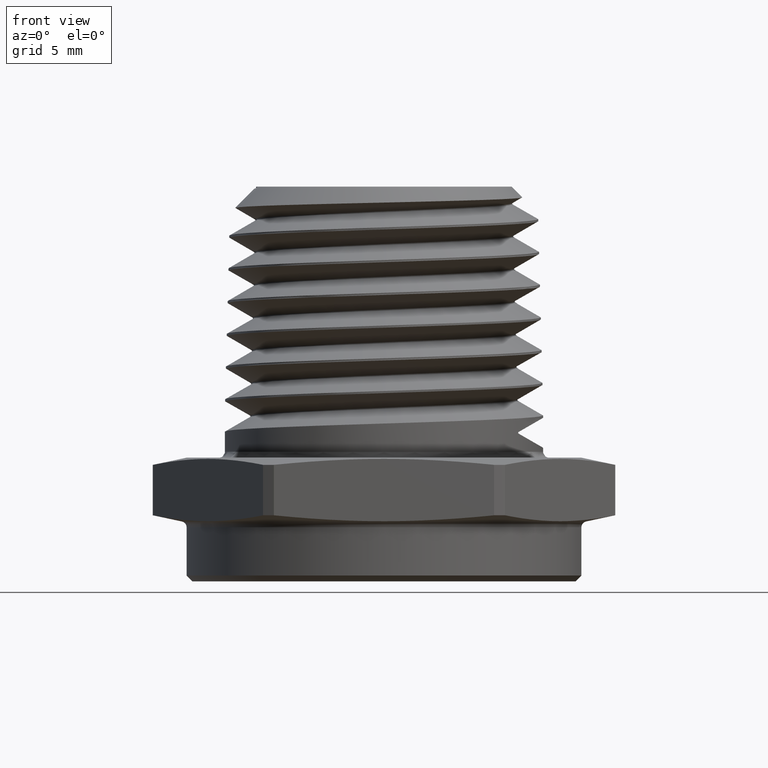
[diagram: clean part render]
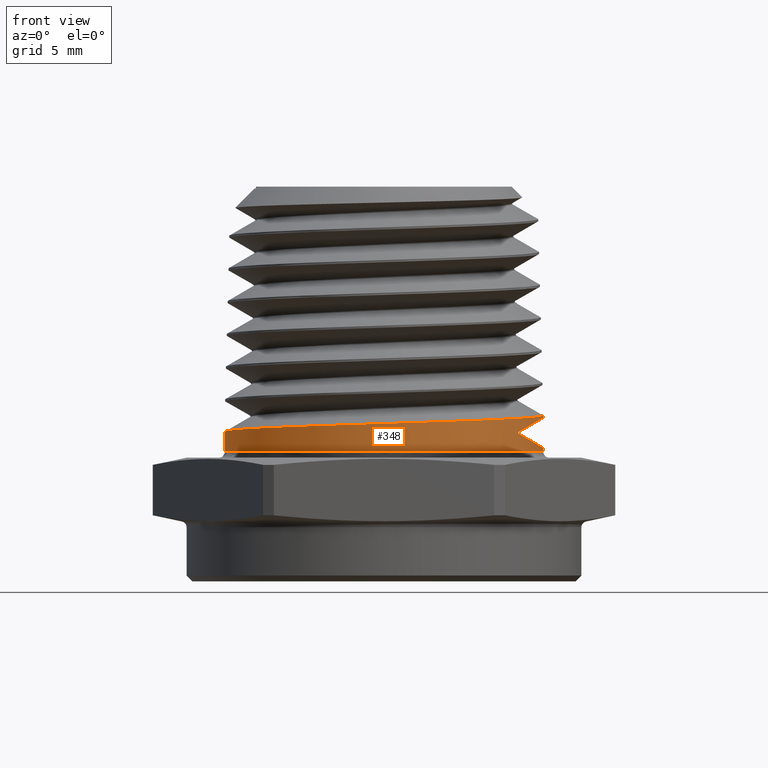
[diagram: same view with one face highlighted and labeled with its STEP entity id]
A machine part, front view. The second image highlights one B-rep face of the part: STEP entity #348.
In plain terms, the highlighted cylindrical surface (partial cylindrical patch) has radius 6.858 mm, axis along (-0, -0, -1).
Its self-contained STEP definition (entity closure, byte-faithful):
#348 = ADVANCED_FACE ( 'NONE', ( #968 ), #974, .T. ) ;
#431 = ORIENTED_EDGE ( 'NONE', *, *, #595, .F. ) ;
#450 = ORIENTED_EDGE ( 'NONE', *, *, #480, .T. ) ;
#457 = ORIENTED_EDGE ( 'NONE', *, *, #482, .T. ) ;
#467 = ORIENTED_EDGE ( 'NONE', *, *, #545, .T. ) ;
#472 = ORIENTED_EDGE ( 'NONE', *, *, #481, .T. ) ;
#479 = EDGE_CURVE ( 'NONE', #916, #906, #3233, .T. ) ;
#480 = EDGE_CURVE ( 'NONE', #913, #899, #3234, .T. ) ;
#481 = EDGE_CURVE ( 'NONE', #899, #946, #1102, .T. ) ;
#482 = EDGE_CURVE ( 'NONE', #946, #915, #3235, .T. ) ;
#545 = EDGE_CURVE ( 'NONE', #873, #876, #1182, .T. ) ;
#591 = EDGE_CURVE ( 'NONE', #906, #915, #1227, .T. ) ;
#595 = EDGE_CURVE ( 'NONE', #913, #876, #1232, .T. ) ;
#597 = EDGE_CURVE ( 'NONE', #916, #873, #1234, .T. ) ;
#603 = AXIS2_PLACEMENT_3D ( 'NONE', #5049, #5004, #5051 ) ;
#705 = AXIS2_PLACEMENT_3D ( 'NONE', #3724, #3725, #3726 ) ;
#859 = ORIENTED_EDGE ( 'NONE', *, *, #591, .F. ) ;
#860 = ORIENTED_EDGE ( 'NONE', *, *, #479, .F. ) ;
#861 = ORIENTED_EDGE ( 'NONE', *, *, #597, .T. ) ;
#873 = VERTEX_POINT ( 'NONE', #4147 ) ;
#876 = VERTEX_POINT ( 'NONE', #4150 ) ;
#899 = VERTEX_POINT ( 'NONE', #4173 ) ;
#906 = VERTEX_POINT ( 'NONE', #4180 ) ;
#913 = VERTEX_POINT ( 'NONE', #4187 ) ;
#915 = VERTEX_POINT ( 'NONE', #4189 ) ;
#916 = VERTEX_POINT ( 'NONE', #4190 ) ;
#946 = VERTEX_POINT ( 'NONE', #4220 ) ;
#968 = FACE_OUTER_BOUND ( 'NONE', #4583, .T. ) ;
#974 = CYLINDRICAL_SURFACE ( 'NONE', #603, 0.2700000000000000200 ) ;
#979 = VECTOR ( 'NONE', #4016, 39.37007874015748100 ) ;
#1100 = VECTOR ( 'NONE', #2969, 39.37007874015748100 ) ;
#1102 = LINE ( 'NONE', #2965, #1100 ) ;
#1182 = CIRCLE ( 'NONE', #705, 0.2700000000000000200 ) ;
#1227 = LINE ( 'NONE', #4013, #1230 ) ;
#1230 = VECTOR ( 'NONE', #4015, 39.37007874015748100 ) ;
#1232 = LINE ( 'NONE', #4087, #1233 ) ;
#1233 = VECTOR ( 'NONE', #4089, 39.37007874015748100 ) ;
#1234 = LINE ( 'NONE', #4088, #979 ) ;
#2884 = CARTESIAN_POINT ( 'NONE',  ( -0.2695713126894183100, -0.01759385642360308800, 0.1547846422497659900 ) ) ;
#2885 = CARTESIAN_POINT ( 'NONE',  ( -0.2699999999999838100, -0.008794953315735133700, 0.1545036891527855100 ) ) ;
#2907 = CARTESIAN_POINT ( 'NONE',  ( 0.2555866325138868600, -0.1011955168304971300, 0.1351730657398471900 ) ) ;
#2922 = CARTESIAN_POINT ( 'NONE',  ( -0.2699999999999999600, -5.001928457193992400E-013, 0.1542199171673591700 ) ) ;
#2923 = CARTESIAN_POINT ( 'NONE',  ( 0.2700000000000000700, -0.05162421279187971000, 0.1775703017474616300 ) ) ;
#2924 = CARTESIAN_POINT ( 'NONE',  ( -0.2678418189951953800, -0.03519938076579547100, 0.1553505993778437300 ) ) ;
#2925 = CARTESIAN_POINT ( 'NONE',  ( -0.2665294096649351000, -0.04405426786653916100, 0.1556372229051654100 ) ) ;
#2926 = CARTESIAN_POINT ( 'NONE',  ( -0.2613292069411589600, -0.07015600141033596900, 0.1564959394442890800 ) ) ;
#2927 = CARTESIAN_POINT ( 'NONE',  ( -0.2562085427529516800, -0.08699327844752335900, 0.1570706403780921200 ) ) ;
#2928 = CARTESIAN_POINT ( 'NONE',  ( -0.2427248556651685800, -0.1195629219990984700, 0.1582080544948097400 ) ) ;
#2929 = CARTESIAN_POINT ( 'NONE',  ( -0.2342460099016525100, -0.1354252936150574800, 0.1587759993442193500 ) ) ;
#2930 = CARTESIAN_POINT ( 'NONE',  ( -0.2146332560954790900, -0.1647536606070471300, 0.1599143710891872400 ) ) ;
#2931 = CARTESIAN_POINT ( 'NONE',  ( -0.2034766960379937900, -0.1783565024307195700, 0.1604888792832840100 ) ) ;
#2932 = CARTESIAN_POINT ( 'NONE',  ( -0.1846908465977699400, -0.1971490378633973800, 0.1613462659691343400 ) ) ;
#2933 = CARTESIAN_POINT ( 'NONE',  ( -0.1780526666197642700, -0.2031642470530242700, 0.1616319531629924800 ) ) ;
#2934 = CARTESIAN_POINT ( 'NONE',  ( -0.1643536124831822500, -0.2143976525868675200, 0.1621987406835217200 ) ) ;
#2935 = CARTESIAN_POINT ( 'NONE',  ( -0.1572687625205452500, -0.2196449807791965600, 0.1624810564436784700 ) ) ;
#2936 = CARTESIAN_POINT ( 'NONE',  ( -0.1353229990580760400, -0.2343015384304528700, 0.1633325145711722900 ) ) ;
#2937 = CARTESIAN_POINT ( 'NONE',  ( -0.1197462156351845700, -0.2426490697059968700, 0.1639096354386823700 ) ) ;
#2938 = CARTESIAN_POINT ( 'NONE',  ( -0.08680748156477127700, -0.2562853650377167100, 0.1650598386590417500 ) ) ;
#2939 = CARTESIAN_POINT ( 'NONE',  ( -0.06993436903124193600, -0.2613788557705513100, 0.1656161909145366700 ) ) ;
#2940 = CARTESIAN_POINT ( 'NONE',  ( -0.04404320137689161200, -0.2665288482817662600, 0.1664678984822139700 ) ) ;
#2941 = CARTESIAN_POINT ( 'NONE',  ( -0.03531516416299352500, -0.2678274284267265800, 0.1667540584754176000 ) ) ;
#2942 = CARTESIAN_POINT ( 'NONE',  ( -0.01765901179647339300, -0.2695678978289226000, 0.1673313463629129100 ) ) ;
#2943 = CARTESIAN_POINT ( 'NONE',  ( -0.008717651430961257900, -0.2700041602211422600, 0.1676228758266191900 ) ) ;
#2944 = CARTESIAN_POINT ( 'NONE',  ( 0.01781903432141308100, -0.2699915886627515800, 0.1684789999499088600 ) ) ;
#2945 = CARTESIAN_POINT ( 'NONE',  ( 0.03532407146534299900, -0.2682610895868287000, 0.1690342919854317900 ) ) ;
#2946 = CARTESIAN_POINT ( 'NONE',  ( 0.06996214507352345500, -0.2613754014208537500, 0.1701736929657151300 ) ) ;
#2947 = CARTESIAN_POINT ( 'NONE',  ( 0.08716127382253365000, -0.2561506209985688900, 0.1707606480680825500 ) ) ;
#2948 = CARTESIAN_POINT ( 'NONE',  ( 0.1197006507650242400, -0.2426560992407751400, 0.1718971371042666300 ) ) ;
#2949 = CARTESIAN_POINT ( 'NONE',  ( 0.1352342274958922800, -0.2343662634558892300, 0.1724529477603488300 ) ) ;
#2950 = CARTESIAN_POINT ( 'NONE',  ( 0.1573990173870118400, -0.2195552544549427600, 0.1733130309303056700 ) ) ;
#2951 = CARTESIAN_POINT ( 'NONE',  ( 0.1645715970072503500, -0.2142294061205553000, 0.1736027718416454600 ) ) ;
#2952 = CARTESIAN_POINT ( 'NONE',  ( 0.1782239742318965100, -0.2030129650964954100, 0.1741777054676412800 ) ) ;
#2953 = CARTESIAN_POINT ( 'NONE',  ( 0.1847436577773732000, -0.1970967437169831600, 0.1744644049361008800 ) ) ;
#2954 = CARTESIAN_POINT ( 'NONE',  ( 0.1971783899747737400, -0.1846565135589790500, 0.1750318998008236500 ) ) ;
#2955 = CARTESIAN_POINT ( 'NONE',  ( 0.2030934343928166600, -0.1781325031214410500, 0.1753127516604415800 ) ) ;
#2956 = CARTESIAN_POINT ( 'NONE',  ( 0.2143094234644698500, -0.1644676344333621800, 0.1758783329937355900 ) ) ;
#2957 = CARTESIAN_POINT ( 'NONE',  ( 0.2196370295960179400, -0.1572845135513334100, 0.1761646899018147700 ) ) ;
#2958 = CARTESIAN_POINT ( 'NONE',  ( 0.2344260221439847000, -0.1351288719449489900, 0.1770241763451939300 ) ) ;
#2959 = CARTESIAN_POINT ( 'NONE',  ( 0.2427080019163846400, -0.1195961187373639500, 0.1775990222788824700 ) ) ;
#2960 = CARTESIAN_POINT ( 'NONE',  ( 0.2561917384781795000, -0.08704136342460096200, 0.1787359389610083900 ) ) ;
#2961 = CARTESIAN_POINT ( 'NONE',  ( 0.2614093399096282800, -0.06983323064915050700, 0.1793037517384225800 ) ) ;
#2962 = CARTESIAN_POINT ( 'NONE',  ( 0.2682758964619657000, -0.03520747750711120800, 0.1804427345998395900 ) ) ;
#2963 = CARTESIAN_POINT ( 'NONE',  ( 0.2700000000000001800, -0.01770134612981881500, 0.1810171905908745700 ) ) ;
#2964 = CARTESIAN_POINT ( 'NONE',  ( 0.2699999999999999600, 4.631336051758946200E-016, 0.1815883301928805600 ) ) ;
#2965 = CARTESIAN_POINT ( 'NONE',  ( 0.2279062328240777900, -0.1447713681635193200, 0.5700000000000147200 ) ) ;
#2966 = CARTESIAN_POINT ( 'NONE',  ( 0.2700000000000001300, -0.05162421279186724100, 0.1268515041418106800 ) ) ;
#2967 = CARTESIAN_POINT ( 'NONE',  ( 0.2699999999999999600, 3.967855629237423000E-016, 0.1268515041418107600 ) ) ;
#2968 = CARTESIAN_POINT ( 'NONE',  ( 0.2279062328241048800, -0.1447713681634768300, 0.1511543519520193400 ) ) ;
#2969 = DIRECTION ( 'NONE',  ( 0.0000000000000000000, 0.0000000000000000000, 1.000000000000000000 ) ) ;
#2970 = CARTESIAN_POINT ( 'NONE',  ( 0.2555866325138799200, -0.1011955168305205400, 0.1692487401494211800 ) ) ;
#2972 = CARTESIAN_POINT ( 'NONE',  ( 0.2279062328241047400, -0.1447713681635192900, 0.1532674539372531300 ) ) ;
#2974 = CARTESIAN_POINT ( 'NONE',  ( 0.2700000000000000700, 3.967855629237423500E-016, 0.1775703017474617200 ) ) ;
#3233 = B_SPLINE_CURVE_WITH_KNOTS ( 'NONE', 3,
 ( #2922, #2885, #2884, #2924, #2925, #2926, #2927, #2928, #2929, #2930, #2931, #2932, #2933, #2934, #2935, #2936, #2937, #2938, #2939, #2940, #2941, #2942, #2943, #2944, #2945, #2946, #2947, #2948, #2949, #2950, #2951, #2952, #2953, #2954, #2955, #2956, #2957, #2958, #2959, #2960, #2961, #2962, #2963, #2964 ),
 .UNSPECIFIED., .F., .F.,
 ( 4, 2, 2, 2, 2, 2, 2, 2, 2, 2, 2, 2, 2, 2, 2, 2, 2, 2, 2, 2, 2, 4 ),
 ( 0.02144630403419212400, 0.02211680131704163800, 0.02278729859989114800, 0.02412829316559017200, 0.02546928773128919600, 0.02681028229698822000, 0.02748077957983773000, 0.02815127686268724400, 0.02949227142838626400, 0.03083326599408529200, 0.03150376327693479900, 0.03217426055978431200, 0.03351525512548333300, 0.03485624969118235300, 0.03619724425688138100, 0.03686774153973088700, 0.03753823882258039400, 0.03820873610542990800, 0.03887923338827941500, 0.04022022795397843500, 0.04156122251967744900, 0.04290221708537646900 ),
 .UNSPECIFIED. ) ;
#3234 =( BOUNDED_CURVE ( )  B_SPLINE_CURVE ( 3, ( #2967, #2966, #2907, #2968 ),
 .UNSPECIFIED., .F., .F. ) 
 B_SPLINE_CURVE_WITH_KNOTS ( ( 4, 4 ),
 ( 0.0000000000000000000, 0.5659172060434634100 ),
 .UNSPECIFIED. ) 
 CURVE ( )  GEOMETRIC_REPRESENTATION_ITEM ( )  RATIONAL_B_SPLINE_CURVE ( ( 1.000000000000000000, 0.9734890710874442000, 0.9734890710874442000, 1.000000000000000000 ) ) 
 REPRESENTATION_ITEM ( '' )  );
#3235 =( BOUNDED_CURVE ( )  B_SPLINE_CURVE ( 3, ( #2972, #2970, #2923, #2974 ),
 .UNSPECIFIED., .F., .F. ) 
 B_SPLINE_CURVE_WITH_KNOTS ( ( 4, 4 ),
 ( 2.575675447546196900, 3.141592653589793100 ),
 .UNSPECIFIED. ) 
 CURVE ( )  GEOMETRIC_REPRESENTATION_ITEM ( )  RATIONAL_B_SPLINE_CURVE ( ( 1.000000000000000000, 0.9734890710874317700, 0.9734890710874317700, 1.000000000000000000 ) ) 
 REPRESENTATION_ITEM ( '' )  );
#3724 = CARTESIAN_POINT ( 'NONE',  ( 0.0000000000000000000, 0.0000000000000000000, 0.1200000000000000200 ) ) ;
#3725 = DIRECTION ( 'NONE',  ( -0.0000000000000000000, 0.0000000000000000000, 1.000000000000000000 ) ) ;
#3726 = DIRECTION ( 'NONE',  ( 1.000000000000000000, 0.0000000000000000000, 0.0000000000000000000 ) ) ;
#4013 = CARTESIAN_POINT ( 'NONE',  ( 0.2700000000000000200, 3.306546357697853700E-017, 0.5699999999999999500 ) ) ;
#4015 = DIRECTION ( 'NONE',  ( -0.0000000000000000000, -0.0000000000000000000, -1.000000000000000000 ) ) ;
#4016 = DIRECTION ( 'NONE',  ( -0.0000000000000000000, -0.0000000000000000000, -1.000000000000000000 ) ) ;
#4087 = CARTESIAN_POINT ( 'NONE',  ( 0.2700000000000000200, 3.306546357697853700E-017, 0.5699999999999999500 ) ) ;
#4088 = CARTESIAN_POINT ( 'NONE',  ( -0.2700000000000000200, 0.0000000000000000000, 0.5699999999999999500 ) ) ;
#4089 = DIRECTION ( 'NONE',  ( -0.0000000000000000000, -0.0000000000000000000, -1.000000000000000000 ) ) ;
#4147 = CARTESIAN_POINT ( 'NONE',  ( -0.2700000000000000200, 0.0000000000000000000, 0.1200000000000000200 ) ) ;
#4150 = CARTESIAN_POINT ( 'NONE',  ( 0.2700000000000000200, 3.306546357697853700E-017, 0.1200000000000000200 ) ) ;
#4173 = CARTESIAN_POINT ( 'NONE',  ( 0.2279062328241048800, -0.1447713681634768300, 0.1511543519520193400 ) ) ;
#4180 = CARTESIAN_POINT ( 'NONE',  ( 0.2699999999999999600, 4.631336051758946200E-016, 0.1815883301928805600 ) ) ;
#4187 = CARTESIAN_POINT ( 'NONE',  ( 0.2699999999999999600, 3.967855629237423000E-016, 0.1268515041418107600 ) ) ;
#4189 = CARTESIAN_POINT ( 'NONE',  ( 0.2700000000000000700, 3.967855629237423500E-016, 0.1775703017474617200 ) ) ;
#4190 = CARTESIAN_POINT ( 'NONE',  ( -0.2699999999999999600, -5.001928457193992400E-013, 0.1542199171673591700 ) ) ;
#4220 = CARTESIAN_POINT ( 'NONE',  ( 0.2279062328241047400, -0.1447713681635192900, 0.1532674539372531300 ) ) ;
#4583 = EDGE_LOOP ( 'NONE', ( #859, #860, #861, #467, #431, #450, #472, #457 ) ) ;
#5004 = DIRECTION ( 'NONE',  ( -0.0000000000000000000, -0.0000000000000000000, -1.000000000000000000 ) ) ;
#5049 = CARTESIAN_POINT ( 'NONE',  ( 0.0000000000000000000, 0.0000000000000000000, 0.5699999999999999500 ) ) ;
#5051 = DIRECTION ( 'NONE',  ( -1.000000000000000000, 0.0000000000000000000, 0.0000000000000000000 ) ) ;